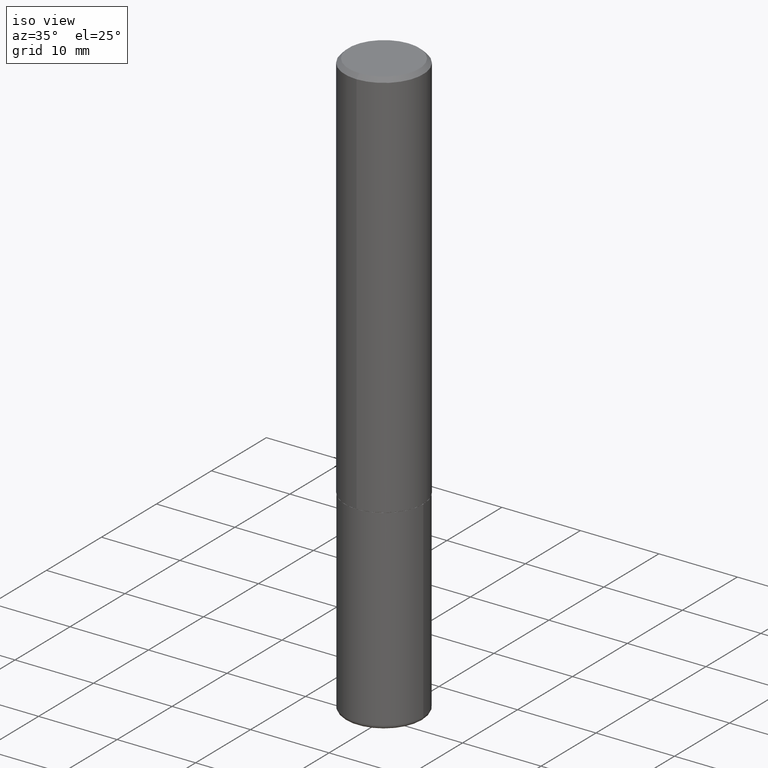
[diagram: clean part render]
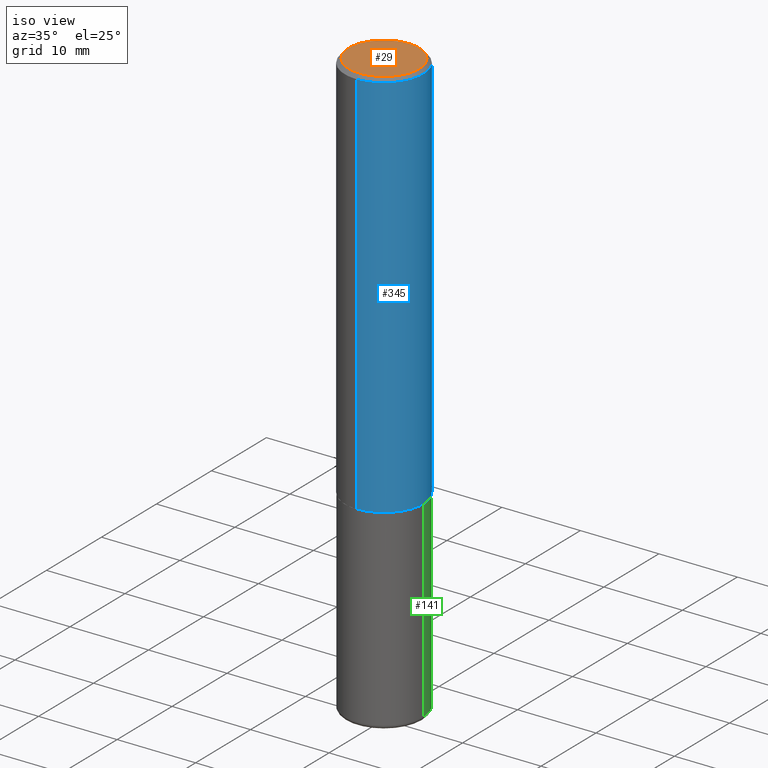
[diagram: same view with three faces highlighted in distinct colors, each labeled with its STEP entity id]
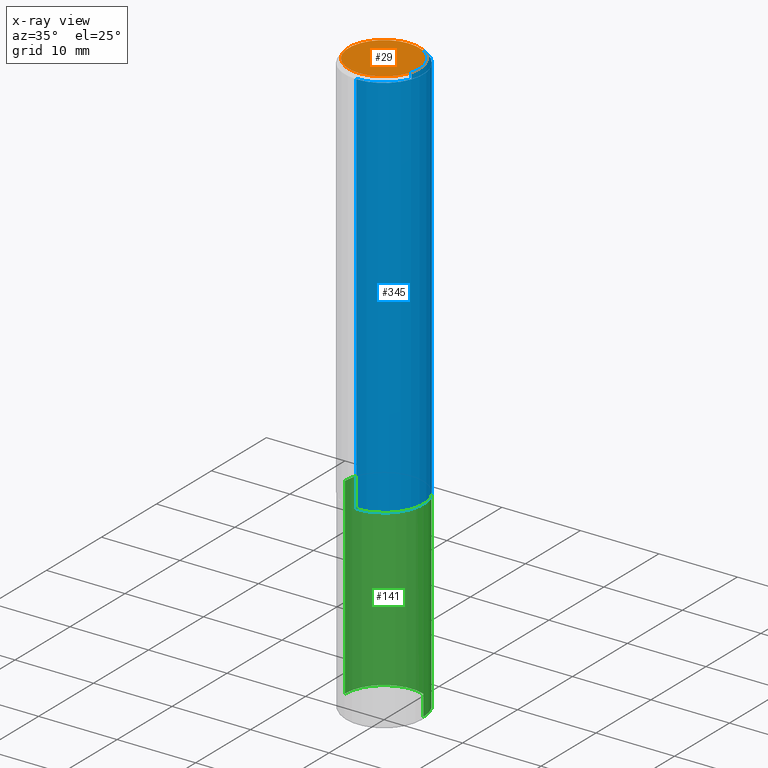
[diagram: x-ray of the same camera — body ghosted, the three highlighted faces saturated]
A machine part, iso view with three faces highlighted in distinct colors.
The next image is the same camera in x-ray (body ghosted, the three faces saturated) — at least one of them is partly hidden behind the body in this view.
Their STEP definitions:

[orange] entity #29 — the highlighted planar face has unit normal (0, -0, -1).
#11 = CARTESIAN_POINT ( 'NONE',  ( -1.281884050883609900E-15, -0.1768499999999998407, 8.395324101811677409E-16 ) ) ;
#29 = ADVANCED_FACE ( 'NONE', ( #181 ), #282, .F. ) ;
#53 = EDGE_CURVE ( 'NONE', #73, #116, #245, .T. ) ;
#59 = DIRECTION ( 'NONE',  ( -6.982962677686265922E-15, -1.000000000000000000, 3.491767699944464940E-15 ) ) ;
#73 = VERTEX_POINT ( 'NONE', #11 ) ;
#82 = CARTESIAN_POINT ( 'NONE',  ( -5.428821863719041386E-45, 7.752188435212310874E-31, 2.220132924459896583E-16 ) ) ;
#86 = AXIS2_PLACEMENT_3D ( 'NONE', #377, #346, #189 ) ;
#99 = CARTESIAN_POINT ( 'NONE',  ( -5.428821863719041386E-45, 7.752188435212310874E-31, 2.220132924459896583E-16 ) ) ;
#106 = ORIENTED_EDGE ( 'NONE', *, *, #407, .T. ) ;
#116 = VERTEX_POINT ( 'NONE', #249 ) ;
#181 = FACE_OUTER_BOUND ( 'NONE', #339, .T. ) ;
#189 = DIRECTION ( 'NONE',  ( 6.982962677686265922E-15, 1.000000000000000000, -3.491767699944464940E-15 ) ) ;
#209 = DIRECTION ( 'NONE',  ( -6.982962677686265922E-15, -1.000000000000000000, 3.491767699944464940E-15 ) ) ;
#214 = CIRCLE ( 'NONE', #391, 0.1768499999999998407 ) ;
#227 = DIRECTION ( 'NONE',  ( -2.445268841296851437E-29, 3.491767699944464545E-15, 1.000000000000000000 ) ) ;
#245 = CIRCLE ( 'NONE', #300, 0.1768499999999998407 ) ;
#249 = CARTESIAN_POINT ( 'NONE',  ( 1.304766576325678705E-15, 0.1768499999999998407, -3.955058252891884244E-16 ) ) ;
#266 = ORIENTED_EDGE ( 'NONE', *, *, #53, .T. ) ;
#282 = PLANE ( 'NONE',  #86 ) ;
#300 = AXIS2_PLACEMENT_3D ( 'NONE', #82, #312, #209 ) ;
#312 = DIRECTION ( 'NONE',  ( -2.445268841296851437E-29, 3.491767699944464545E-15, 1.000000000000000000 ) ) ;
#339 = EDGE_LOOP ( 'NONE', ( #106, #266 ) ) ;
#346 = DIRECTION ( 'NONE',  ( 2.445268841296850876E-29, -3.491767699944464940E-15, -1.000000000000000000 ) ) ;
#377 = CARTESIAN_POINT ( 'NONE',  ( 1.234936949548815012E-15, 0.1768499999999998407, -5.065124715121833152E-16 ) ) ;
#391 = AXIS2_PLACEMENT_3D ( 'NONE', #99, #227, #59 ) ;
#407 = EDGE_CURVE ( 'NONE', #116, #73, #214, .T. ) ;

[blue] entity #345 — the highlighted cylindrical surface (partial cylindrical patch) has radius 5 mm, axis along (-0, 0, 1).
#18 = DIRECTION ( 'NONE',  ( -6.982962677686265922E-15, -1.000000000000000000, 4.163344669033670112E-15 ) ) ;
#38 = VERTEX_POINT ( 'NONE', #409 ) ;
#39 = CIRCLE ( 'NONE', #105, 0.1968500000000002470 ) ;
#41 = VERTEX_POINT ( 'NONE', #223 ) ;
#54 = DIRECTION ( 'NONE',  ( -2.445268841296851437E-29, 3.491767699944464940E-15, 1.000000000000000000 ) ) ;
#56 = VECTOR ( 'NONE', #244, 39.37007874015748143 ) ;
#65 = DIRECTION ( 'NONE',  ( -6.982962677686265922E-15, -1.000000000000000000, 3.491767699944464545E-15 ) ) ;
#75 = AXIS2_PLACEMENT_3D ( 'NONE', #252, #256, #286 ) ;
#79 = ORIENTED_EDGE ( 'NONE', *, *, #167, .T. ) ;
#91 = FACE_OUTER_BOUND ( 'NONE', #151, .T. ) ;
#105 = AXIS2_PLACEMENT_3D ( 'NONE', #179, #174, #18 ) ;
#127 = CARTESIAN_POINT ( 'NONE',  ( -1.350489030861325626E-15, -0.1968500000000001082, -0.01999999999999935510 ) ) ;
#151 = EDGE_LOOP ( 'NONE', ( #79, #210, #195, #305 ) ) ;
#154 = EDGE_CURVE ( 'NONE', #41, #336, #217, .T. ) ;
#167 = EDGE_CURVE ( 'NONE', #41, #38, #39, .T. ) ;
#174 = DIRECTION ( 'NONE',  ( -2.445268841296851437E-29, 3.491767699944464545E-15, 1.000000000000000000 ) ) ;
#177 = CIRCLE ( 'NONE', #75, 0.1968500000000000527 ) ;
#179 = CARTESIAN_POINT ( 'NONE',  ( 4.811066445251554069E-29, -6.870052949640732965E-15, -1.967499999999999805 ) ) ;
#187 = EDGE_CURVE ( 'NONE', #38, #313, #242, .T. ) ;
#195 = ORIENTED_EDGE ( 'NONE', *, *, #378, .F. ) ;
#210 = ORIENTED_EDGE ( 'NONE', *, *, #187, .T. ) ;
#212 = CARTESIAN_POINT ( 'NONE',  ( 1.398703375343757985E-15, 0.1968500000000001360, -6.873544717340683232E-16 ) ) ;
#217 = LINE ( 'NONE', #278, #253 ) ;
#220 = CARTESIAN_POINT ( 'NONE',  ( 0.000000000000000000, 0.000000000000000000, 0.000000000000000000 ) ) ;
#223 = CARTESIAN_POINT ( 'NONE',  ( -1.374596203102495065E-15, -0.1968500000000071026, -1.967499999999998916 ) ) ;
#224 = DIRECTION ( 'NONE',  ( -2.445268841296851437E-29, 3.491767699944464545E-15, 1.000000000000000000 ) ) ;
#242 = LINE ( 'NONE', #212, #56 ) ;
#244 = DIRECTION ( 'NONE',  ( -2.445268841296851437E-29, 3.491767699944464940E-15, 1.000000000000000000 ) ) ;
#252 = CARTESIAN_POINT ( 'NONE',  ( 4.890537682593712927E-31, -6.983535399888942699E-17, -0.02000000000000004205 ) ) ;
#253 = VECTOR ( 'NONE', #54, 39.37007874015748143 ) ;
#256 = DIRECTION ( 'NONE',  ( -2.445268841296851437E-29, 3.491767699944464545E-15, 1.000000000000000000 ) ) ;
#278 = CARTESIAN_POINT ( 'NONE',  ( -1.374596203102542397E-15, -0.1968500000000001360, 6.873544717340683232E-16 ) ) ;
#283 = AXIS2_PLACEMENT_3D ( 'NONE', #220, #224, #65 ) ;
#286 = DIRECTION ( 'NONE',  ( -6.982962677686265133E-15, -1.000000000000000000, 3.491137977679279029E-15 ) ) ;
#305 = ORIENTED_EDGE ( 'NONE', *, *, #154, .F. ) ;
#313 = VERTEX_POINT ( 'NONE', #383 ) ;
#317 = CYLINDRICAL_SURFACE ( 'NONE', #283, 0.1968500000000001360 ) ;
#336 = VERTEX_POINT ( 'NONE', #127 ) ;
#345 = ADVANCED_FACE ( 'NONE', ( #91 ), #317, .T. ) ;
#378 = EDGE_CURVE ( 'NONE', #336, #313, #177, .T. ) ;
#383 = CARTESIAN_POINT ( 'NONE',  ( 1.374596203102542200E-15, 0.1968499999999999694, -0.02000000000000072900 ) ) ;
#409 = CARTESIAN_POINT ( 'NONE',  ( 1.398703375343782440E-15, 0.1968499999999933914, -1.967500000000000471 ) ) ;

[green] entity #141 — the highlighted cylindrical surface (partial cylindrical patch) has radius 5 mm, axis along (-0, 0, 1).
#9 = ORIENTED_EDGE ( 'NONE', *, *, #78, .T. ) ;
#10 = EDGE_LOOP ( 'NONE', ( #19, #9, #71, #87 ) ) ;
#19 = ORIENTED_EDGE ( 'NONE', *, *, #272, .T. ) ;
#50 = DIRECTION ( 'NONE',  ( -2.445468806185136877E-29, 3.491481338843145188E-15, 1.000000000000000000 ) ) ;
#58 = CARTESIAN_POINT ( 'NONE',  ( -0.1968500000000000250, -7.158219089893024104E-15, -1.968499999999999694 ) ) ;
#64 = DIRECTION ( 'NONE',  ( -2.445468806185136597E-29, 3.491481338843145583E-15, 1.000000000000000000 ) ) ;
#71 = ORIENTED_EDGE ( 'NONE', *, *, #351, .F. ) ;
#78 = EDGE_CURVE ( 'NONE', #101, #393, #215, .T. ) ;
#80 = DIRECTION ( 'NONE',  ( -2.445468806185136597E-29, 3.491481338843145583E-15, 1.000000000000000000 ) ) ;
#87 = ORIENTED_EDGE ( 'NONE', *, *, #250, .F. ) ;
#101 = VERTEX_POINT ( 'NONE', #370 ) ;
#113 = CARTESIAN_POINT ( 'NONE',  ( -0.1968499999999999694, 1.398703375343756999E-15, -9.682923725166782276E-30 ) ) ;
#122 = CARTESIAN_POINT ( 'NONE',  ( 0.1968499999999999694, -1.374596203102541411E-15, 9.598753983154298056E-30 ) ) ;
#126 = DIRECTION ( 'NONE',  ( -2.445468806185136597E-29, 3.491481338843145583E-15, 1.000000000000000000 ) ) ;
#141 = ADVANCED_FACE ( 'NONE', ( #401 ), #394, .T. ) ;
#158 = DIRECTION ( 'NONE',  ( 1.000000000000000000, -6.982962677686269866E-15, 0.000000000000000000 ) ) ;
#178 = CARTESIAN_POINT ( 'NONE',  ( 0.1968499999999999417, -1.161546011806337053E-14, -2.933100000000000041 ) ) ;
#194 = DIRECTION ( 'NONE',  ( -2.445468806185136877E-29, 3.491481338843145188E-15, 1.000000000000000000 ) ) ;
#198 = AXIS2_PLACEMENT_3D ( 'NONE', #349, #126, #158 ) ;
#202 = VERTEX_POINT ( 'NONE', #178 ) ;
#207 = VERTEX_POINT ( 'NONE', #373 ) ;
#215 = LINE ( 'NONE', #113, #395 ) ;
#230 = CIRCLE ( 'NONE', #198, 0.1968499999999999694 ) ;
#250 = EDGE_CURVE ( 'NONE', #202, #207, #327, .T. ) ;
#272 = EDGE_CURVE ( 'NONE', #202, #101, #230, .T. ) ;
#290 = DIRECTION ( 'NONE',  ( 1.000000000000000000, -6.982962677686267499E-15, 0.000000000000000000 ) ) ;
#327 = LINE ( 'NONE', #122, #381 ) ;
#333 = AXIS2_PLACEMENT_3D ( 'NONE', #379, #80, #347 ) ;
#347 = DIRECTION ( 'NONE',  ( 1.000000000000000000, -6.982962677686266711E-15, 4.876176775795935793E-29 ) ) ;
#349 = CARTESIAN_POINT ( 'NONE',  ( 7.172804555421624566E-29, -1.024086391496083050E-14, -2.933100000000000041 ) ) ;
#351 = EDGE_CURVE ( 'NONE', #207, #393, #366, .T. ) ;
#352 = CARTESIAN_POINT ( 'NONE',  ( 4.813905344975440714E-29, -6.872981015512730918E-15, -1.968499999999999694 ) ) ;
#366 = CIRCLE ( 'NONE', #411, 0.1968500000000000250 ) ;
#370 = CARTESIAN_POINT ( 'NONE',  ( -0.1968499999999999417, -8.842160539617071922E-15, -2.933100000000000041 ) ) ;
#373 = CARTESIAN_POINT ( 'NONE',  ( 0.1968500000000000250, -8.247577218615273316E-15, -1.968499999999999694 ) ) ;
#379 = CARTESIAN_POINT ( 'NONE',  ( 0.000000000000000000, 0.000000000000000000, 0.000000000000000000 ) ) ;
#381 = VECTOR ( 'NONE', #194, 39.37007874015748143 ) ;
#393 = VERTEX_POINT ( 'NONE', #58 ) ;
#394 = CYLINDRICAL_SURFACE ( 'NONE', #333, 0.1968499999999999694 ) ;
#395 = VECTOR ( 'NONE', #50, 39.37007874015748143 ) ;
#401 = FACE_OUTER_BOUND ( 'NONE', #10, .T. ) ;
#411 = AXIS2_PLACEMENT_3D ( 'NONE', #352, #64, #290 ) ;